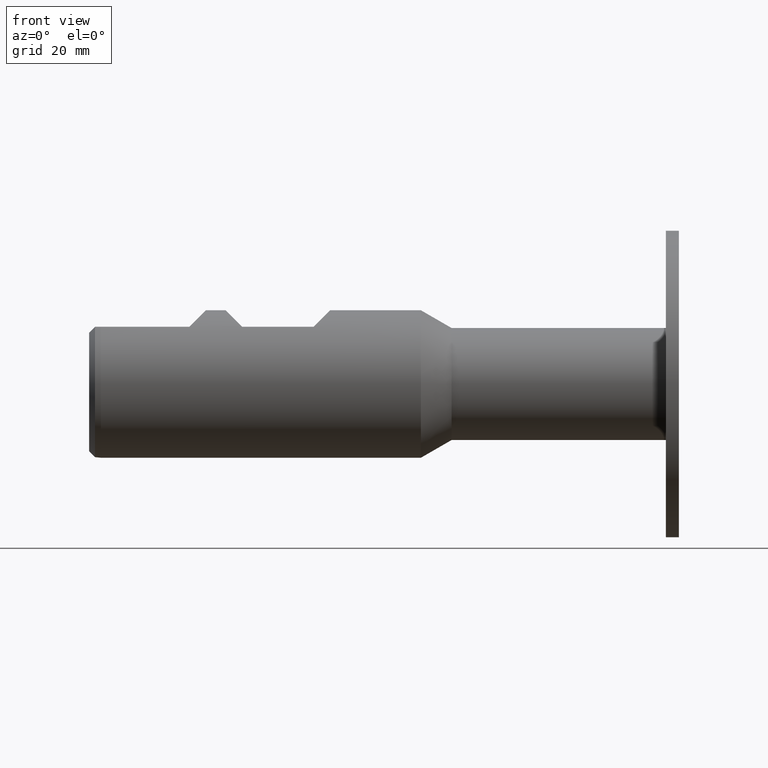
[diagram: clean part render]
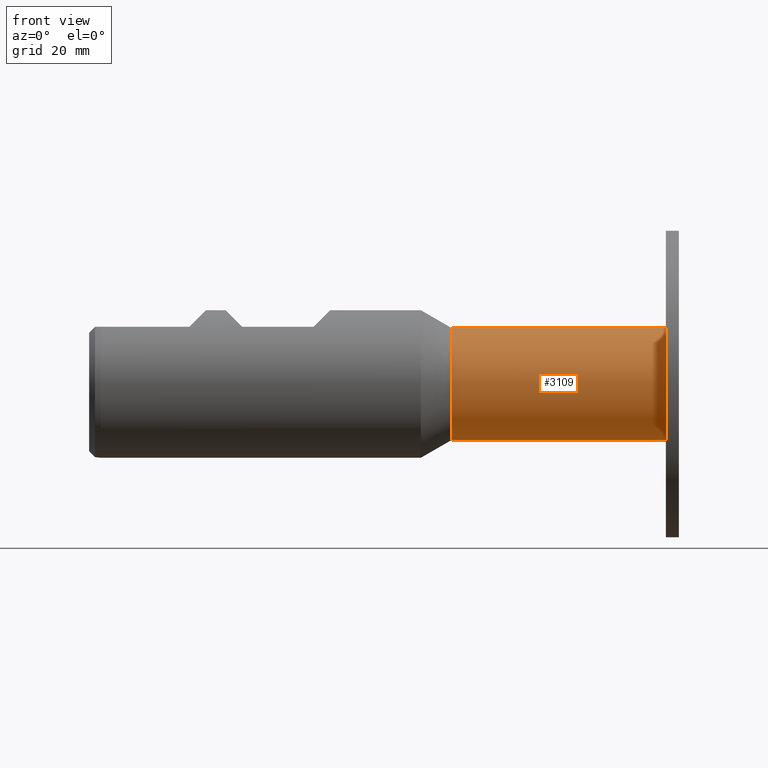
[diagram: same view with one face highlighted and labeled with its STEP entity id]
A machine part, front view. The second image highlights one B-rep face of the part: STEP entity #3109.
In plain terms, the highlighted cylindrical surface (partial cylindrical patch) has radius 9.5 mm, axis along (1, 0, 0).
Its self-contained STEP definition (entity closure, byte-faithful):
#36 = CARTESIAN_POINT ( 'NONE',  ( -38.29376628615804634, 0.0000000000000000000, 9.499999999999994671 ) ) ;
#212 = VERTEX_POINT ( 'NONE', #2424 ) ;
#232 = CARTESIAN_POINT ( 'NONE',  ( -38.29376628615804634, 1.347111479062088207E-15, -9.499999999999994671 ) ) ;
#299 = AXIS2_PLACEMENT_3D ( 'NONE', #1179, #3585, #4262 ) ;
#343 = EDGE_CURVE ( 'NONE', #2665, #212, #4052, .T. ) ;
#362 = CARTESIAN_POINT ( 'NONE',  ( -38.29376628615804634, 0.0000000000000000000, 0.0000000000000000000 ) ) ;
#406 = CARTESIAN_POINT ( 'NONE',  ( 0.0000000000000000000, 0.0000000000000000000, -9.499999999999994671 ) ) ;
#478 = ORIENTED_EDGE ( 'NONE', *, *, #2859, .F. ) ;
#479 = CARTESIAN_POINT ( 'NONE',  ( -1.899999999999999911, 0.0000000000000000000, 9.499999999999994671 ) ) ;
#674 = VERTEX_POINT ( 'NONE', #479 ) ;
#1060 = EDGE_CURVE ( 'NONE', #2260, #2665, #1720, .T. ) ;
#1179 = CARTESIAN_POINT ( 'NONE',  ( 0.0000000000000000000, 0.0000000000000000000, 0.0000000000000000000 ) ) ;
#1362 = EDGE_CURVE ( 'NONE', #674, #212, #3106, .T. ) ;
#1720 = CIRCLE ( 'NONE', #1918, 9.499999999999994671 ) ;
#1753 = ORIENTED_EDGE ( 'NONE', *, *, #1060, .T. ) ;
#1918 = AXIS2_PLACEMENT_3D ( 'NONE', #362, #2710, #4261 ) ;
#2012 = VECTOR ( 'NONE', #4104, 1000.000000000000000 ) ;
#2260 = VERTEX_POINT ( 'NONE', #36 ) ;
#2384 = FACE_OUTER_BOUND ( 'NONE', #3383, .T. ) ;
#2424 = CARTESIAN_POINT ( 'NONE',  ( -1.899999999999999911, 1.163414459189984894E-15, -9.499999999999994671 ) ) ;
#2665 = VERTEX_POINT ( 'NONE', #232 ) ;
#2710 = DIRECTION ( 'NONE',  ( 1.000000000000000000, -0.0000000000000000000, -0.0000000000000000000 ) ) ;
#2722 = CARTESIAN_POINT ( 'NONE',  ( 0.0000000000000000000, 1.163414459189984894E-15, 9.499999999999994671 ) ) ;
#2755 = DIRECTION ( 'NONE',  ( 1.000000000000000000, -0.0000000000000000000, -0.0000000000000000000 ) ) ;
#2758 = LINE ( 'NONE', #2722, #2012 ) ;
#2813 = DIRECTION ( 'NONE',  ( 0.0000000000000000000, 0.0000000000000000000, -1.000000000000000000 ) ) ;
#2859 = EDGE_CURVE ( 'NONE', #2260, #674, #2758, .T. ) ;
#2876 = CARTESIAN_POINT ( 'NONE',  ( -1.899999999999999911, 0.0000000000000000000, 0.0000000000000000000 ) ) ;
#2928 = VECTOR ( 'NONE', #2755, 1000.000000000000000 ) ;
#3106 = CIRCLE ( 'NONE', #4205, 9.499999999999994671 ) ;
#3109 = ADVANCED_FACE ( 'NONE', ( #2384 ), #3533, .T. ) ;
#3383 = EDGE_LOOP ( 'NONE', ( #478, #1753, #4402, #3593 ) ) ;
#3533 = CYLINDRICAL_SURFACE ( 'NONE', #299, 9.499999999999994671 ) ;
#3552 = DIRECTION ( 'NONE',  ( 1.000000000000000000, -0.0000000000000000000, -0.0000000000000000000 ) ) ;
#3585 = DIRECTION ( 'NONE',  ( 1.000000000000000000, -0.0000000000000000000, -0.0000000000000000000 ) ) ;
#3593 = ORIENTED_EDGE ( 'NONE', *, *, #1362, .F. ) ;
#4052 = LINE ( 'NONE', #406, #2928 ) ;
#4104 = DIRECTION ( 'NONE',  ( 1.000000000000000000, -0.0000000000000000000, -0.0000000000000000000 ) ) ;
#4205 = AXIS2_PLACEMENT_3D ( 'NONE', #2876, #3552, #2813 ) ;
#4261 = DIRECTION ( 'NONE',  ( 0.0000000000000000000, 0.0000000000000000000, -1.000000000000000000 ) ) ;
#4262 = DIRECTION ( 'NONE',  ( 0.0000000000000000000, 0.0000000000000000000, -1.000000000000000000 ) ) ;
#4402 = ORIENTED_EDGE ( 'NONE', *, *, #343, .T. ) ;